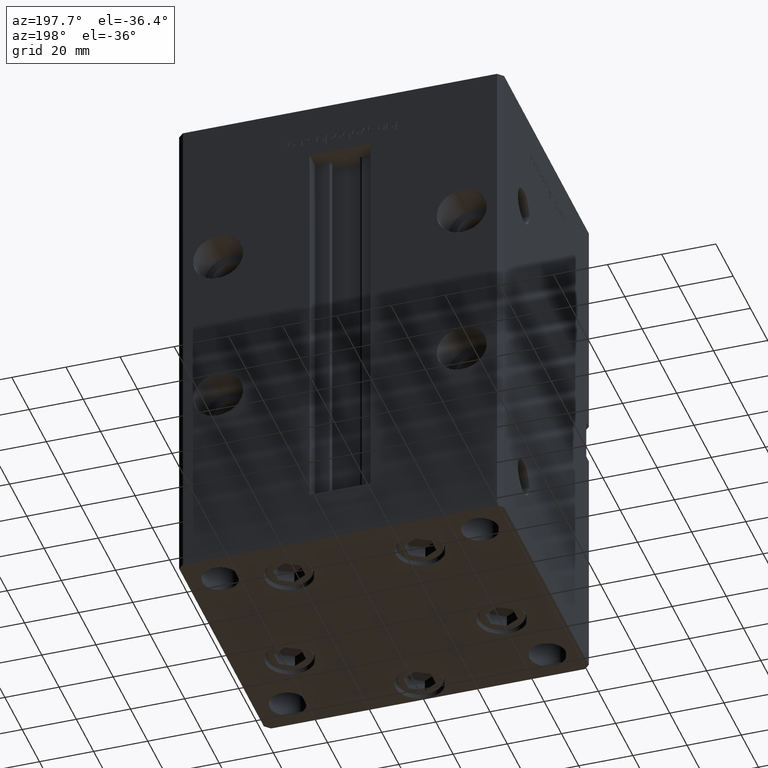
[diagram: clean part render]
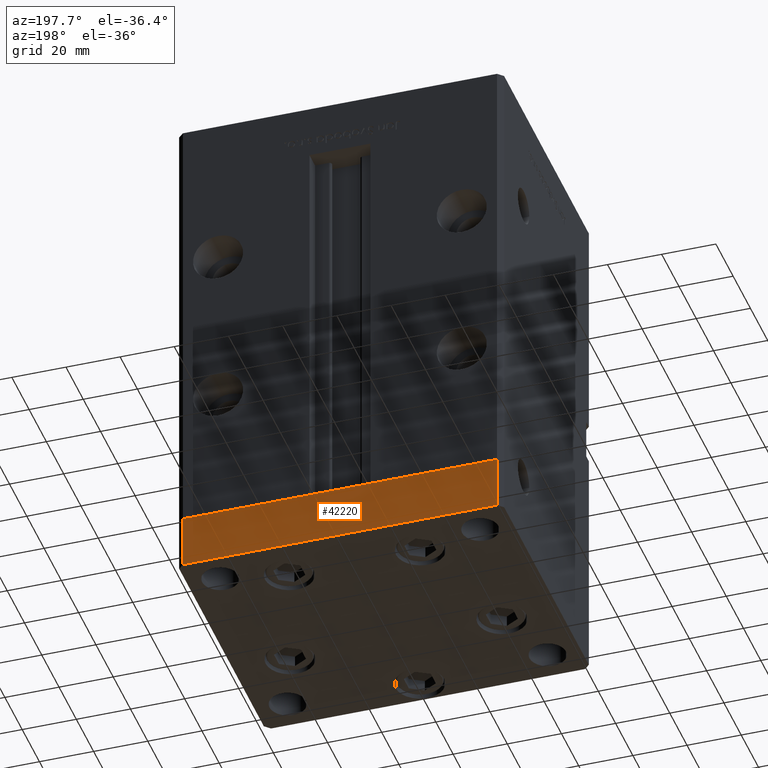
[diagram: same view with one face highlighted and labeled with its STEP entity id]
A machine part, auxiliary view. The second image highlights one B-rep face of the part: STEP entity #42220.
In plain terms, the highlighted planar face has unit normal (-0, 1, 0).
Its self-contained STEP definition (entity closure, byte-faithful):
#1233 = VERTEX_POINT ( 'NONE', #8221 ) ;
#1423 = LINE ( 'NONE', #10802, #4959 ) ;
#1886 = ORIENTED_EDGE ( 'NONE', *, *, #14630, .T. ) ;
#2492 = CARTESIAN_POINT ( 'NONE',  ( 57.99999999999993605, 51.00000000000000711, -20.00000000000000000 ) ) ;
#4959 = VECTOR ( 'NONE', #43299, 1000.000000000000000 ) ;
#8221 = CARTESIAN_POINT ( 'NONE',  ( -57.99999999999999289, 50.99999999999997868, -20.00000000000000000 ) ) ;
#8437 = ORIENTED_EDGE ( 'NONE', *, *, #45082, .F. ) ;
#10802 = CARTESIAN_POINT ( 'NONE',  ( 57.99999999999993605, 51.00000000000000711, 0.000000000000000000 ) ) ;
#11013 = AXIS2_PLACEMENT_3D ( 'NONE', #35603, #23228, #31556 ) ;
#14630 = EDGE_CURVE ( 'NONE', #25209, #1233, #47188, .T. ) ;
#14747 = LINE ( 'NONE', #35426, #43833 ) ;
#16271 = EDGE_CURVE ( 'NONE', #1233, #44623, #14747, .T. ) ;
#19120 = VERTEX_POINT ( 'NONE', #19873 ) ;
#19776 = EDGE_LOOP ( 'NONE', ( #44032, #8437, #1886, #24955 ) ) ;
#19873 = CARTESIAN_POINT ( 'NONE',  ( 57.99999999999993605, 51.00000000000000711, 0.000000000000000000 ) ) ;
#22647 = CARTESIAN_POINT ( 'NONE',  ( 57.99999999999993605, 51.00000000000000711, -20.00000000000000000 ) ) ;
#23228 = DIRECTION ( 'NONE',  ( -2.392722035830079958E-16, 1.000000000000000000, 0.000000000000000000 ) ) ;
#24788 = VECTOR ( 'NONE', #47629, 1000.000000000000000 ) ;
#24955 = ORIENTED_EDGE ( 'NONE', *, *, #16271, .T. ) ;
#25209 = VERTEX_POINT ( 'NONE', #2492 ) ;
#26463 = CARTESIAN_POINT ( 'NONE',  ( -57.99999999999999289, 50.99999999999997868, 0.000000000000000000 ) ) ;
#27262 = PLANE ( 'NONE',  #11013 ) ;
#27343 = DIRECTION ( 'NONE',  ( 0.000000000000000000, 0.000000000000000000, 1.000000000000000000 ) ) ;
#31556 = DIRECTION ( 'NONE',  ( -1.000000000000000000, -2.392722035830079958E-16, 0.000000000000000000 ) ) ;
#35426 = CARTESIAN_POINT ( 'NONE',  ( -57.99999999999999289, 50.99999999999997868, -20.00000000000000000 ) ) ;
#35603 = CARTESIAN_POINT ( 'NONE',  ( 57.99999999999993605, 51.00000000000000711, -20.00000000000000000 ) ) ;
#39133 = DIRECTION ( 'NONE',  ( -1.000000000000000000, -2.392722035830079958E-16, 0.000000000000000000 ) ) ;
#40193 = EDGE_CURVE ( 'NONE', #19120, #44623, #1423, .T. ) ;
#42220 = ADVANCED_FACE ( 'NONE', ( #47695 ), #27262, .T. ) ;
#42924 = VECTOR ( 'NONE', #39133, 1000.000000000000000 ) ;
#43299 = DIRECTION ( 'NONE',  ( -1.000000000000000000, -2.392722035830079958E-16, 0.000000000000000000 ) ) ;
#43833 = VECTOR ( 'NONE', #27343, 1000.000000000000000 ) ;
#44032 = ORIENTED_EDGE ( 'NONE', *, *, #40193, .F. ) ;
#44623 = VERTEX_POINT ( 'NONE', #26463 ) ;
#45082 = EDGE_CURVE ( 'NONE', #25209, #19120, #47360, .T. ) ;
#47188 = LINE ( 'NONE', #50683, #42924 ) ;
#47360 = LINE ( 'NONE', #22647, #24788 ) ;
#47629 = DIRECTION ( 'NONE',  ( 0.000000000000000000, 0.000000000000000000, 1.000000000000000000 ) ) ;
#47695 = FACE_OUTER_BOUND ( 'NONE', #19776, .T. ) ;
#50683 = CARTESIAN_POINT ( 'NONE',  ( 57.99999999999993605, 51.00000000000000711, -20.00000000000000000 ) ) ;